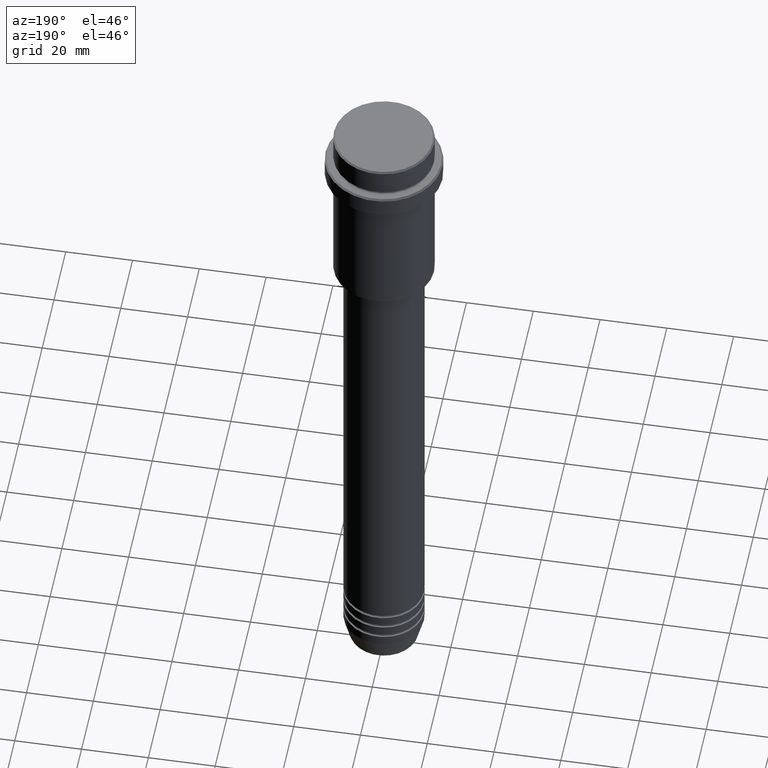
[diagram: clean part render]
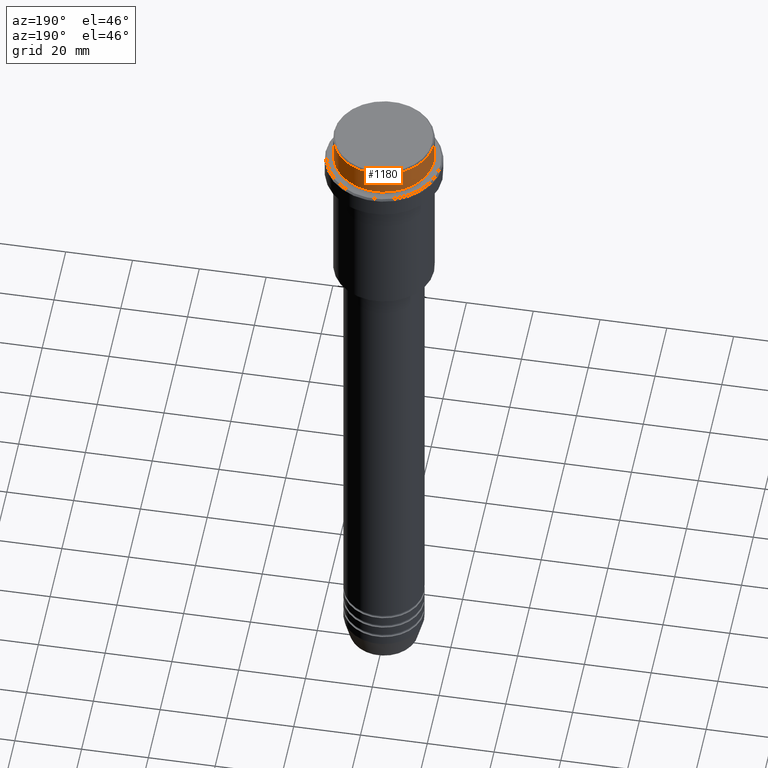
[diagram: same view with one face highlighted and labeled with its STEP entity id]
A machine part, auxiliary view. The second image highlights one B-rep face of the part: STEP entity #1180.
In plain terms, the highlighted cylindrical surface (partial cylindrical patch) has radius 15 mm, axis along (-0, -0, 1).
Its self-contained STEP definition (entity closure, byte-faithful):
#42 = EDGE_LOOP ( 'NONE', ( #1377, #859, #829, #1405 ) ) ;
#72 = EDGE_CURVE ( 'NONE', #158, #1140, #800, .T. ) ;
#81 = AXIS2_PLACEMENT_3D ( 'NONE', #534, #1311, #920 ) ;
#158 = VERTEX_POINT ( 'NONE', #750 ) ;
#203 = VERTEX_POINT ( 'NONE', #290 ) ;
#215 = CIRCLE ( 'NONE', #81, 15.00000000000000000 ) ;
#265 = CARTESIAN_POINT ( 'NONE',  ( 0.000000000000000000, 0.000000000000000000, -0.5000000000000108802 ) ) ;
#290 = CARTESIAN_POINT ( 'NONE',  ( -15.00000000000000000, 1.836970198721029589E-15, -7.999999999999998224 ) ) ;
#317 = FACE_OUTER_BOUND ( 'NONE', #42, .T. ) ;
#383 = CARTESIAN_POINT ( 'NONE',  ( 15.00000000000000000, 0.000000000000000000, -7.999999999999998224 ) ) ;
#413 = LINE ( 'NONE', #844, #528 ) ;
#421 = DIRECTION ( 'NONE',  ( -0.000000000000000000, -0.000000000000000000, 1.000000000000000000 ) ) ;
#479 = VERTEX_POINT ( 'NONE', #383 ) ;
#528 = VECTOR ( 'NONE', #1181, 1000.000000000000000 ) ;
#534 = CARTESIAN_POINT ( 'NONE',  ( 0.000000000000000000, 0.000000000000000000, -7.999999999999998224 ) ) ;
#545 = CYLINDRICAL_SURFACE ( 'NONE', #1361, 15.00000000000000000 ) ;
#594 = DIRECTION ( 'NONE',  ( 1.000000000000000000, 0.000000000000000000, 0.000000000000000000 ) ) ;
#682 = CARTESIAN_POINT ( 'NONE',  ( -15.00000000000000000, 1.836970198721029589E-15, 0.000000000000000000 ) ) ;
#744 = DIRECTION ( 'NONE',  ( 1.000000000000000000, 0.000000000000000000, 0.000000000000000000 ) ) ;
#750 = CARTESIAN_POINT ( 'NONE',  ( -15.00000000000000000, 1.836970198721029589E-15, -0.5000000000000108802 ) ) ;
#798 = LINE ( 'NONE', #682, #845 ) ;
#800 = CIRCLE ( 'NONE', #1238, 15.00000000000000000 ) ;
#829 = ORIENTED_EDGE ( 'NONE', *, *, #72, .T. ) ;
#844 = CARTESIAN_POINT ( 'NONE',  ( 15.00000000000000000, 0.000000000000000000, 0.000000000000000000 ) ) ;
#845 = VECTOR ( 'NONE', #1316, 1000.000000000000000 ) ;
#856 = CARTESIAN_POINT ( 'NONE',  ( 0.000000000000000000, 0.000000000000000000, 0.000000000000000000 ) ) ;
#859 = ORIENTED_EDGE ( 'NONE', *, *, #1380, .T. ) ;
#920 = DIRECTION ( 'NONE',  ( 1.000000000000000000, 0.000000000000000000, 0.000000000000000000 ) ) ;
#1123 = DIRECTION ( 'NONE',  ( 0.000000000000000000, 0.000000000000000000, -1.000000000000000000 ) ) ;
#1140 = VERTEX_POINT ( 'NONE', #1237 ) ;
#1154 = EDGE_CURVE ( 'NONE', #479, #203, #215, .T. ) ;
#1180 = ADVANCED_FACE ( 'NONE', ( #317 ), #545, .T. ) ;
#1181 = DIRECTION ( 'NONE',  ( -0.000000000000000000, -0.000000000000000000, 1.000000000000000000 ) ) ;
#1237 = CARTESIAN_POINT ( 'NONE',  ( 15.00000000000000000, 0.000000000000000000, -0.5000000000000108802 ) ) ;
#1238 = AXIS2_PLACEMENT_3D ( 'NONE', #265, #1123, #594 ) ;
#1268 = EDGE_CURVE ( 'NONE', #479, #1140, #413, .T. ) ;
#1311 = DIRECTION ( 'NONE',  ( -0.000000000000000000, -0.000000000000000000, 1.000000000000000000 ) ) ;
#1316 = DIRECTION ( 'NONE',  ( -0.000000000000000000, -0.000000000000000000, 1.000000000000000000 ) ) ;
#1361 = AXIS2_PLACEMENT_3D ( 'NONE', #856, #421, #744 ) ;
#1377 = ORIENTED_EDGE ( 'NONE', *, *, #1154, .T. ) ;
#1380 = EDGE_CURVE ( 'NONE', #203, #158, #798, .T. ) ;
#1405 = ORIENTED_EDGE ( 'NONE', *, *, #1268, .F. ) ;